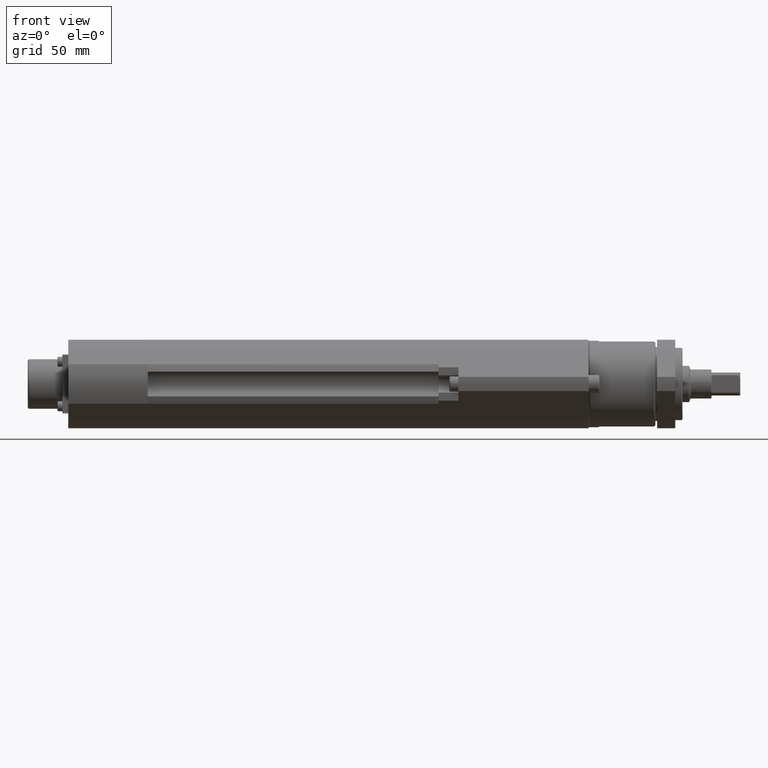
[diagram: clean part render]
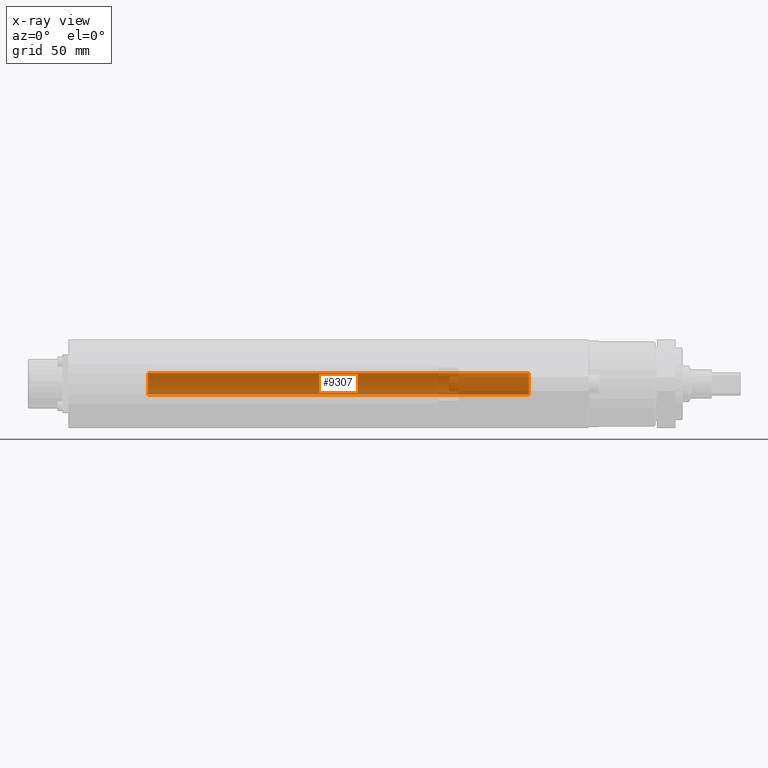
[diagram: x-ray — body ghosted, one internal face saturated and labeled with its STEP entity id]
A machine part, front view, then the same camera in x-ray: the body is ghosted and one INTERNAL B-rep face — a face not visible from any outside direction — is saturated and labeled: STEP entity #9307.
In plain terms, the highlighted planar face has unit normal (0, 1, 0).
Its self-contained STEP definition (entity closure, byte-faithful):
#36 = DIRECTION ( 'NONE',  ( -0.0000000000000000000, -0.0000000000000000000, 1.000000000000000000 ) ) ;
#279 = DIRECTION ( 'NONE',  ( -1.000000000000000000, 1.156482317317871500E-015, 0.0000000000000000000 ) ) ;
#412 = FACE_OUTER_BOUND ( 'NONE', #8505, .T. ) ;
#662 = ORIENTED_EDGE ( 'NONE', *, *, #6189, .F. ) ;
#1015 = LINE ( 'NONE', #5735, #8433 ) ;
#1036 = AXIS2_PLACEMENT_3D ( 'NONE', #8854, #4538, #279 ) ;
#1667 = LINE ( 'NONE', #8249, #4797 ) ;
#3247 = ORIENTED_EDGE ( 'NONE', *, *, #4881, .F. ) ;
#3267 = LINE ( 'NONE', #3982, #8559 ) ;
#3738 = VERTEX_POINT ( 'NONE', #7391 ) ;
#3982 = CARTESIAN_POINT ( 'NONE',  ( -292.0000000000000600, 39.00000000000024900, 5.999999999999999100 ) ) ;
#4526 = ORIENTED_EDGE ( 'NONE', *, *, #4774, .T. ) ;
#4538 = DIRECTION ( 'NONE',  ( 1.156482317317871500E-015, 1.000000000000000000, 0.0000000000000000000 ) ) ;
#4702 = DIRECTION ( 'NONE',  ( 0.0000000000000000000, -0.0000000000000000000, 1.000000000000000000 ) ) ;
#4774 = EDGE_CURVE ( 'NONE', #3738, #9019, #1015, .T. ) ;
#4797 = VECTOR ( 'NONE', #6824, 1000.000000000000000 ) ;
#4881 = EDGE_CURVE ( 'NONE', #6749, #9019, #7522, .T. ) ;
#4887 = CARTESIAN_POINT ( 'NONE',  ( -292.0000000000000600, 39.00000000000024900, 5.999999999999999100 ) ) ;
#5040 = CARTESIAN_POINT ( 'NONE',  ( -81.00000000000000000, 39.00000000000000700, 5.999999999999999100 ) ) ;
#5238 = VERTEX_POINT ( 'NONE', #8644 ) ;
#5735 = CARTESIAN_POINT ( 'NONE',  ( -81.00000000000000000, 39.00000000000000700, 5.999999999999999100 ) ) ;
#5761 = EDGE_CURVE ( 'NONE', #5238, #3738, #1667, .T. ) ;
#5954 = ORIENTED_EDGE ( 'NONE', *, *, #5761, .T. ) ;
#6189 = EDGE_CURVE ( 'NONE', #5238, #6749, #3267, .T. ) ;
#6695 = PLANE ( 'NONE',  #1036 ) ;
#6749 = VERTEX_POINT ( 'NONE', #4887 ) ;
#6824 = DIRECTION ( 'NONE',  ( 1.000000000000000000, -1.156482317317871500E-015, -0.0000000000000000000 ) ) ;
#7328 = CARTESIAN_POINT ( 'NONE',  ( -313.6333076527839700, 39.00000000000027700, 5.999999999999999100 ) ) ;
#7391 = CARTESIAN_POINT ( 'NONE',  ( -81.00000000000000000, 39.00000000000000700, -6.000000000000000900 ) ) ;
#7522 = LINE ( 'NONE', #7328, #9211 ) ;
#8249 = CARTESIAN_POINT ( 'NONE',  ( -313.6333076527839700, 39.00000000000027700, -6.000000000000000900 ) ) ;
#8433 = VECTOR ( 'NONE', #36, 1000.000000000000000 ) ;
#8505 = EDGE_LOOP ( 'NONE', ( #662, #5954, #4526, #3247 ) ) ;
#8559 = VECTOR ( 'NONE', #4702, 1000.000000000000000 ) ;
#8644 = CARTESIAN_POINT ( 'NONE',  ( -292.0000000000000600, 39.00000000000024900, -6.000000000000000900 ) ) ;
#8740 = DIRECTION ( 'NONE',  ( 1.000000000000000000, -1.156482317317871500E-015, -0.0000000000000000000 ) ) ;
#8854 = CARTESIAN_POINT ( 'NONE',  ( -313.6333076527839700, 39.00000000000027700, 5.999999999999999100 ) ) ;
#9019 = VERTEX_POINT ( 'NONE', #5040 ) ;
#9211 = VECTOR ( 'NONE', #8740, 1000.000000000000000 ) ;
#9307 = ADVANCED_FACE ( 'NONE', ( #412 ), #6695, .F. ) ;